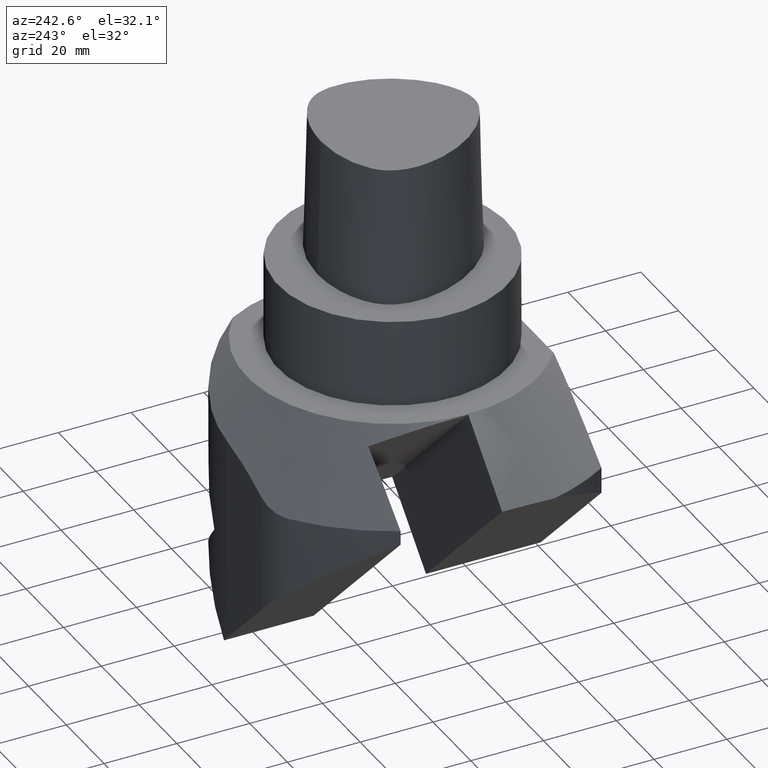
[diagram: clean part render]
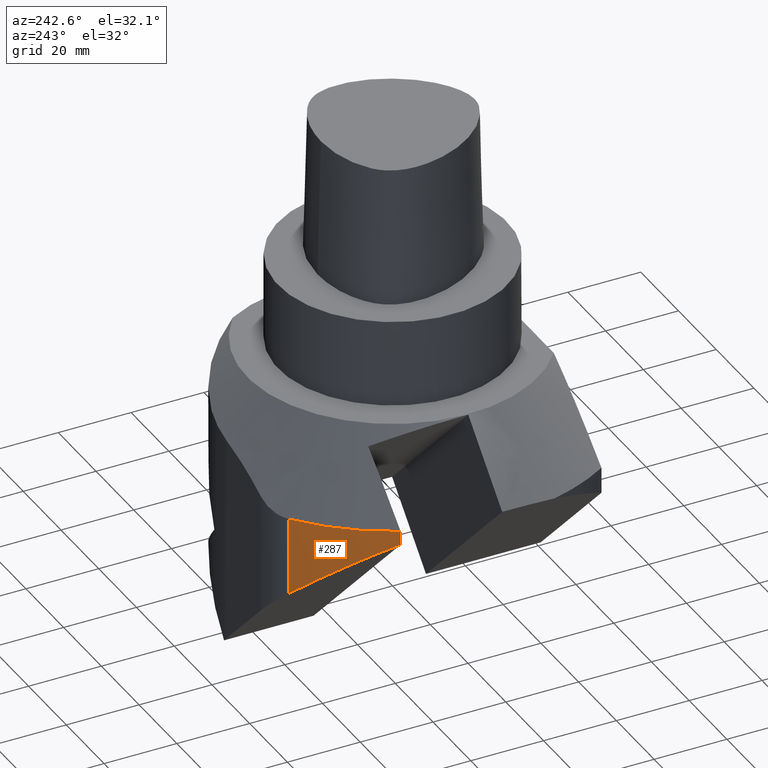
[diagram: same view with one face highlighted and labeled with its STEP entity id]
A machine part, auxiliary view. The second image highlights one B-rep face of the part: STEP entity #287.
In plain terms, the highlighted cylindrical surface (partial cylindrical patch) has radius 59 mm, axis along (0, -0, -1).
Its self-contained STEP definition (entity closure, byte-faithful):
#121=EDGE_CURVE('Unnamed[1]',#342,#343,#344,.T.);
#162=EDGE_CURVE('Unnamed[1]',#409,#410,#411,.T.);
#167=EDGE_CURVE('Unnamed[1]',#343,#409,#417,.T.);
#175=EDGE_CURVE('Unnamed[1]',#410,#342,#427,.T.);
#287=ADVANCED_FACE('Unnamed[1]',(#563),#564,.T.);
#342=VERTEX_POINT('',#621);
#343=VERTEX_POINT('',#622);
#344=CIRCLE('',#623,59.0);
#409=VERTEX_POINT('',#723);
#410=VERTEX_POINT('',#724);
#411=ELLIPSE('',#725,83.4386001800129,59.0);
#417=LINE('',#733,#734);
#427=LINE('',#818,#819);
#563=FACE_OUTER_BOUND('',#1193,.T.);
#564=CYLINDRICAL_SURFACE('',#1194,59.0);
#621=CARTESIAN_POINT('',(-53.2525600728532,25.4000953873634,-43.0000000000001));
#622=CARTESIAN_POINT('',(-35.6541898930139,47.0082837707665,-43.0000000000002));
#623=AXIS2_PLACEMENT_3D('',#1257,#1258,#1259);
#723=CARTESIAN_POINT('',(-35.6541898930146,47.0082837707659,-64.4168779188507));
#724=CARTESIAN_POINT('',(-53.2525671185423,25.4000806157215,-46.8185006933228));
#725=AXIS2_PLACEMENT_3D('',#1328,#1329,#1330);
#733=CARTESIAN_POINT('',(-35.6541898930146,47.0082837707659,-225.691832081474));
#734=VECTOR('',#1337,1.0);
#818=CARTESIAN_POINT('',(-53.2525798314676,25.4000539624067,-53.7084389594254));
#819=VECTOR('',#1358,1.0);
#1193=EDGE_LOOP('',(#1502,#1503,#1504,#1505));
#1194=AXIS2_PLACEMENT_3D('',#1506,#1507,#1508);
#1257=CARTESIAN_POINT('',(5.26598123633363E-015,-9.54791801177637E-015,-43.0000000000001));
#1258=DIRECTION('',(1.22464679914735E-016,-2.22044604925031E-016,-1.0));
#1259=DIRECTION('',(1.0,-1.83697019872103E-016,1.22464679914735E-016));
#1328=CARTESIAN_POINT('',(1.22551712883059E-014,-2.22202407167117E-014,-100.071067811866));
#1329=DIRECTION('',(0.70710678118655,2.71158374330524E-017,0.707106781186545));
#1330=DIRECTION('',(0.707106781186545,-2.86902654303702E-016,-0.70710678118655));
#1337=DIRECTION('',(-1.81140886498535E-016,-4.33419372587335E-016,-1.0));
#1358=DIRECTION('',(-1.22464679914735E-016,2.22044604925031E-016,1.0));
#1502=ORIENTED_EDGE('',*,*,#175,.T.);
#1503=ORIENTED_EDGE('',*,*,#121,.T.);
#1504=ORIENTED_EDGE('',*,*,#167,.T.);
#1505=ORIENTED_EDGE('',*,*,#162,.T.);
#1506=CARTESIAN_POINT('',(8.327598234202E-015,-1.50990331349021E-014,-68.0000000000001));
#1507=DIRECTION('',(1.22464679914735E-016,-2.22044604925031E-016,-1.0));
#1508=DIRECTION('',(1.0,-1.83697019872103E-016,1.22464679914735E-016));